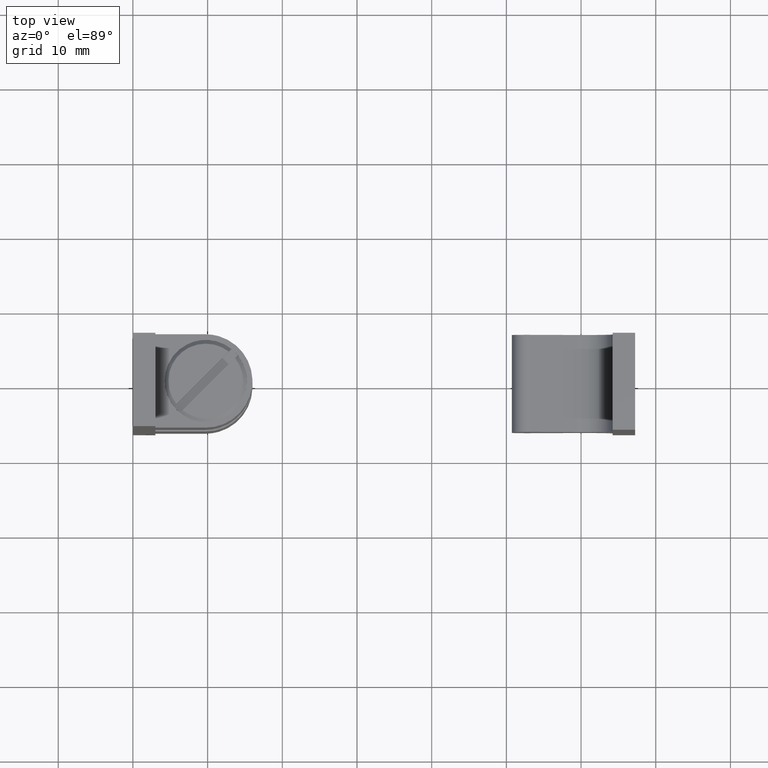
[diagram: clean part render]
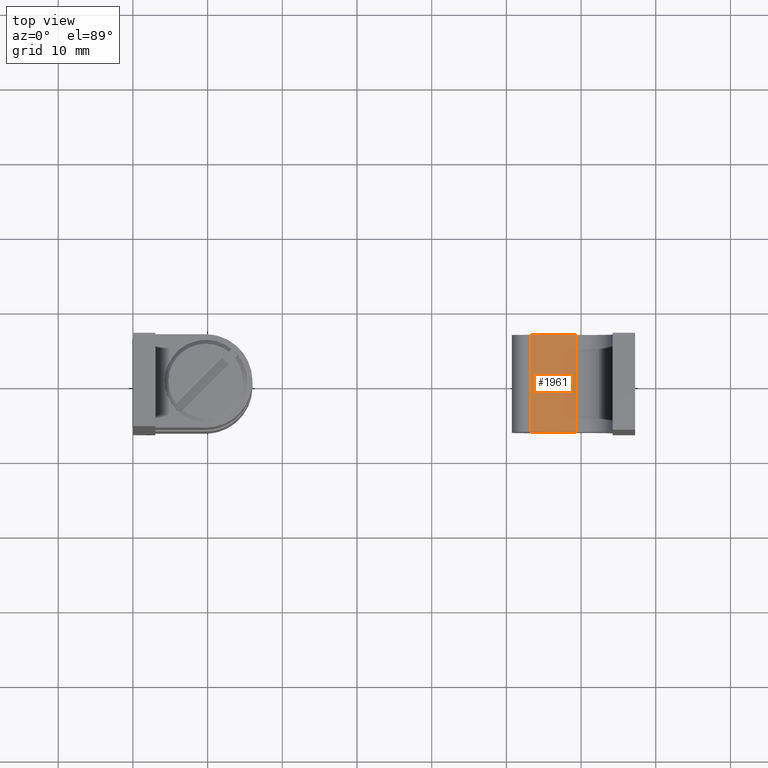
[diagram: same view with one face highlighted and labeled with its STEP entity id]
A machine part, top view. The second image highlights one B-rep face of the part: STEP entity #1961.
In plain terms, the highlighted face is a freeform B-spline surface patch.
Its self-contained STEP definition (entity closure, byte-faithful):
#1511=CARTESIAN_POINT('',(59.377891871657702,6.500000000000000,3.592600000000000));
#1512=VERTEX_POINT('',#1511);
#1513=CARTESIAN_POINT('',(53.187939824608598,6.500000000000000,4.947778338626130));
#1514=VERTEX_POINT('',#1513);
#1515=CARTESIAN_POINT('',(59.377891871657702,6.500000000000000,3.592600000000000));
#1516=CARTESIAN_POINT('',(53.187939824608598,6.500000000000000,4.947778338626130));
#1517=QUASI_UNIFORM_CURVE('',1,(#1515,#1516),.UNSPECIFIED.,.F.,.U.);
#1518=EDGE_CURVE('',#1512,#1514,#1517,.T.);
#1643=CARTESIAN_POINT('',(59.377891871657702,-6.500000000000000,3.592600000000000));
#1644=VERTEX_POINT('',#1643);
#1645=CARTESIAN_POINT('',(53.187939824608598,-6.500000000000000,4.947778338626130));
#1646=VERTEX_POINT('',#1645);
#1647=CARTESIAN_POINT('',(59.377891871657702,-6.500000000000000,3.592600000000000));
#1648=CARTESIAN_POINT('',(53.187939824608598,-6.500000000000000,4.947778338626130));
#1649=QUASI_UNIFORM_CURVE('',1,(#1647,#1648),.UNSPECIFIED.,.F.,.U.);
#1650=EDGE_CURVE('',#1644,#1646,#1649,.T.);
#1785=CARTESIAN_POINT('',(59.377891871657702,-6.500000000000000,3.592600000000000));
#1786=CARTESIAN_POINT('',(59.377891871657702,6.500000000000000,3.592600000000000));
#1787=QUASI_UNIFORM_CURVE('',1,(#1785,#1786),.UNSPECIFIED.,.F.,.U.);
#1788=EDGE_CURVE('',#1644,#1512,#1787,.T.);
#1942=CARTESIAN_POINT('',(53.187939824608598,-6.500000000000000,4.947778338626130));
#1943=CARTESIAN_POINT('',(53.187939824608598,6.500000000000000,4.947778338626130));
#1944=QUASI_UNIFORM_CURVE('',1,(#1942,#1943),.UNSPECIFIED.,.F.,.U.);
#1945=EDGE_CURVE('',#1646,#1514,#1944,.T.);
#1950=CARTESIAN_POINT('',(59.687079659999142,-7.149349974803478,3.524908911257595));
#1951=CARTESIAN_POINT('',(52.878750652705037,-7.149349974803478,5.015469730274467));
#1952=CARTESIAN_POINT('',(59.687079659999142,7.149350323490650,3.524908911257595));
#1953=CARTESIAN_POINT('',(52.878750652705037,7.149350323490650,5.015469730274467));
#1954=B_SPLINE_SURFACE_WITH_KNOTS('',1,1,((#1950,#1952),(#1951,#1953)),.UNSPECIFIED.,.F.,.F.,.U.,(2,2),(2,2),(0.0,6.969585025433760),(0.0,14.298700298294129),.UNSPECIFIED.);
#1955=ORIENTED_EDGE('',*,*,#1518,.T.);
#1956=ORIENTED_EDGE('',*,*,#1945,.F.);
#1957=ORIENTED_EDGE('',*,*,#1650,.F.);
#1958=ORIENTED_EDGE('',*,*,#1788,.T.);
#1959=EDGE_LOOP('',(#1955,#1956,#1957,#1958));
#1960=FACE_OUTER_BOUND('',#1959,.T.);
#1961=ADVANCED_FACE('',(#1960),#1954,.F.);